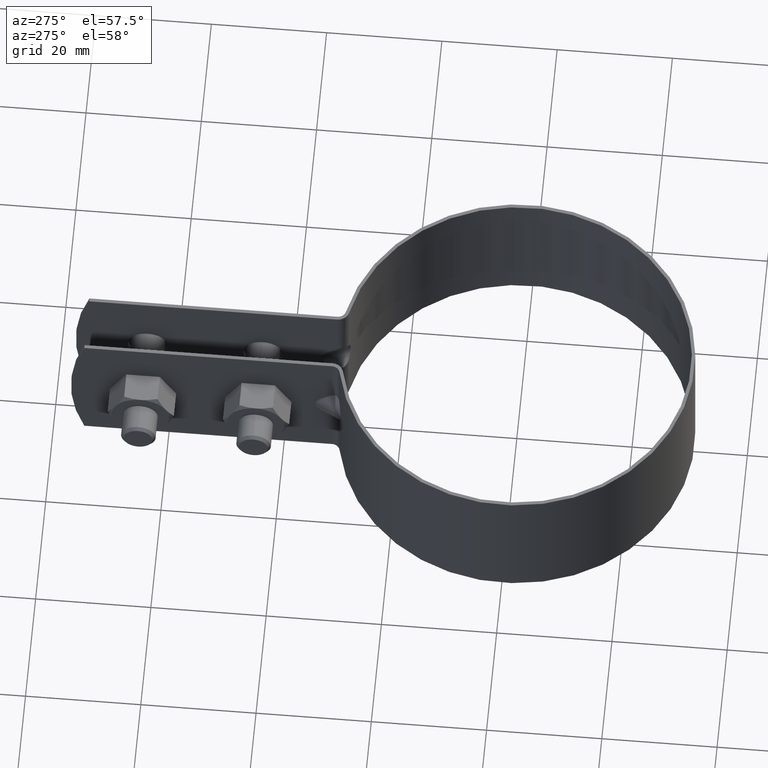
[diagram: clean part render]
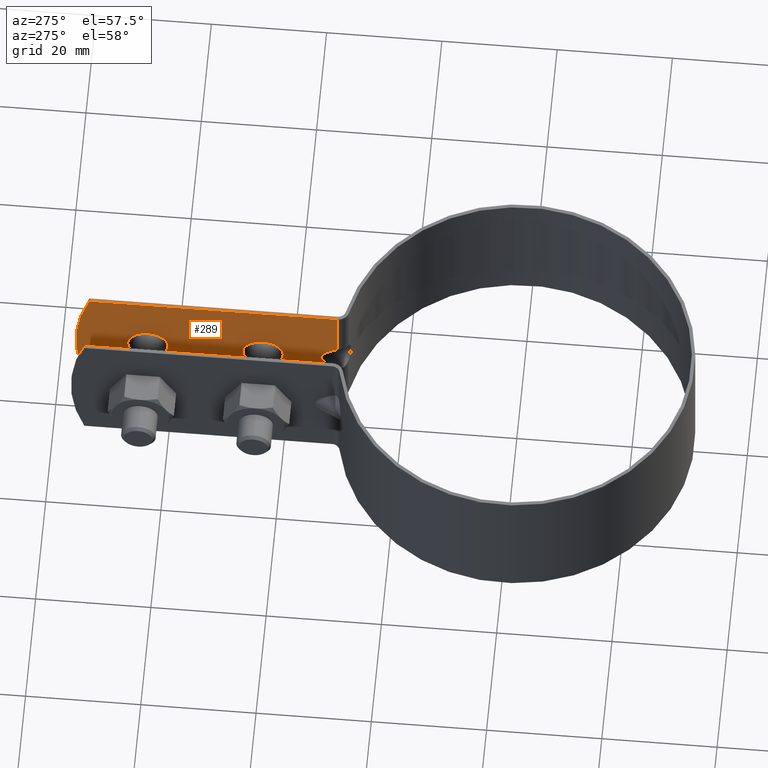
[diagram: same view with one face highlighted and labeled with its STEP entity id]
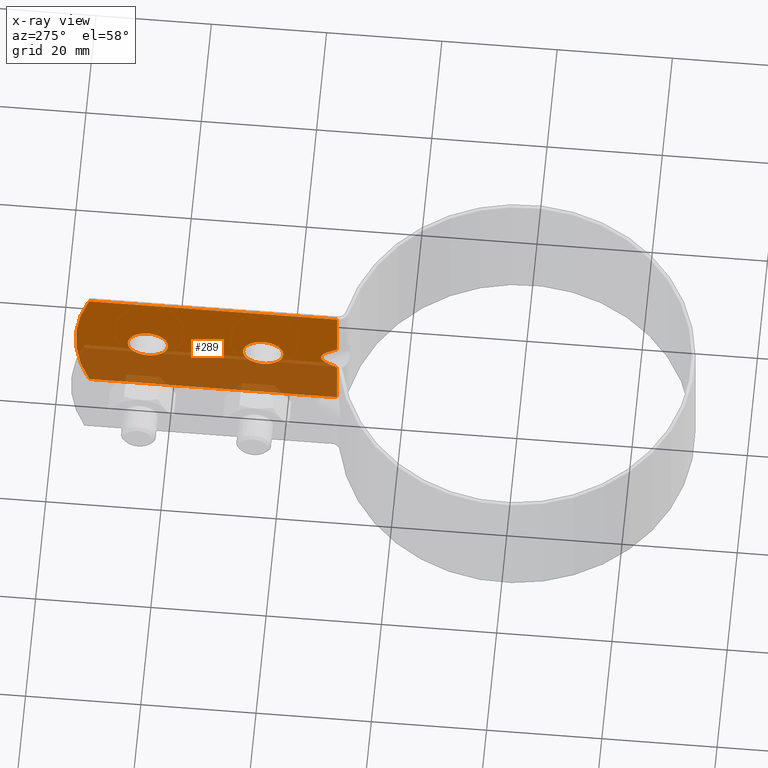
[diagram: x-ray of the same camera — body ghosted, the highlighted face saturated]
A machine part, auxiliary view. The second image highlights one B-rep face of the part: STEP entity #289.
The next image is the same camera in x-ray: the body ghosted, the highlighted face saturated — about 45% of this face is hidden behind the body in this view.
In plain terms, the highlighted planar face has unit normal (1, -0, 0).
Its self-contained STEP definition (entity closure, byte-faithful):
#289 = ADVANCED_FACE( '', ( #422, #423, #424 ), #425, .F. );
#422 = FACE_OUTER_BOUND( '', #654, .T. );
#423 = FACE_BOUND( '', #655, .T. );
#424 = FACE_BOUND( '', #656, .T. );
#425 = PLANE( '', #657 );
#654 = EDGE_LOOP( '', ( #1008, #1009, #1010, #1011, #1012, #1013, #1014, #1015 ) );
#655 = EDGE_LOOP( '', ( #1016 ) );
#656 = EDGE_LOOP( '', ( #1017 ) );
#657 = AXIS2_PLACEMENT_3D( '', #1018, #1019, #1020 );
#1008 = ORIENTED_EDGE( '', *, *, #1694, .T. );
#1009 = ORIENTED_EDGE( '', *, *, #1695, .T. );
#1010 = ORIENTED_EDGE( '', *, *, #1686, .F. );
#1011 = ORIENTED_EDGE( '', *, *, #1630, .F. );
#1012 = ORIENTED_EDGE( '', *, *, #1617, .T. );
#1013 = ORIENTED_EDGE( '', *, *, #1660, .F. );
#1014 = ORIENTED_EDGE( '', *, *, #1662, .F. );
#1015 = ORIENTED_EDGE( '', *, *, #1657, .F. );
#1016 = ORIENTED_EDGE( '', *, *, #1676, .F. );
#1017 = ORIENTED_EDGE( '', *, *, #1680, .F. );
#1018 = CARTESIAN_POINT( '', ( 4.50000000000000, 31.5881702540682, -12.5000000000000 ) );
#1019 = DIRECTION( '', ( 1.00000000000000, -6.06692130572647E-017, 0.000000000000000 ) );
#1020 = DIRECTION( '', ( 6.06692130572647E-017, 1.00000000000000, 0.000000000000000 ) );
#1617 = EDGE_CURVE( '', #1857, #1854, #1858, .T. );
#1630 = EDGE_CURVE( '', #1857, #1863, #1882, .T. );
#1657 = EDGE_CURVE( '', #1928, #1924, #1930, .T. );
#1660 = EDGE_CURVE( '', #1933, #1854, #1935, .T. );
#1662 = EDGE_CURVE( '', #1924, #1933, #1937, .F. );
#1676 = EDGE_CURVE( '', #1962, #1962, #1963, .F. );
#1680 = EDGE_CURVE( '', #1970, #1970, #1971, .F. );
#1686 = EDGE_CURVE( '', #1863, #1977, #1981, .T. );
#1694 = EDGE_CURVE( '', #1928, #1992, #1993, .T. );
#1695 = EDGE_CURVE( '', #1992, #1977, #1994, .T. );
#1854 = VERTEX_POINT( '', #2254 );
#1857 = VERTEX_POINT( '', #2257 );
#1858 = LINE( '', #2258, #2259 );
#1863 = VERTEX_POINT( '', #2265 );
#1882 = LINE( '', #2289, #2290 );
#1924 = VERTEX_POINT( '', #2373 );
#1928 = VERTEX_POINT( '', #2378 );
#1930 = LINE( '', #2380, #2381 );
#1933 = VERTEX_POINT( '', #2384 );
#1935 = LINE( '', #2387, #2388 );
#1937 = ELLIPSE( '', #2403, 7.48914349958989, 3.40000000000000 );
#1962 = VERTEX_POINT( '', #2445 );
#1963 = CIRCLE( '', #2446, 3.50000000000000 );
#1970 = VERTEX_POINT( '', #2453 );
#1971 = CIRCLE( '', #2454, 3.50000000000000 );
#1977 = VERTEX_POINT( '', #2461 );
#1981 = CIRCLE( '', #2466, 35.0000000000000 );
#1992 = VERTEX_POINT( '', #2483 );
#1993 = LINE( '', #2484, #2485 );
#1994 = LINE( '', #2486, #2487 );
#2254 = CARTESIAN_POINT( '', ( 4.50000000000000, 31.5881702540682, -2.86659732203416 ) );
#2257 = CARTESIAN_POINT( '', ( 4.50000000000000, 31.5881702540682, -12.5000000000000 ) );
#2258 = CARTESIAN_POINT( '', ( 4.50000000000000, 31.5881702540682, -12.5000000000000 ) );
#2259 = VECTOR( '', #2949, 1000.00000000000 );
#2265 = CARTESIAN_POINT( '', ( 4.50000000000000, 74.6051587988220, -12.5000000000000 ) );
#2289 = CARTESIAN_POINT( '', ( 4.50000000000000, 31.5881702540682, -12.5000000000000 ) );
#2290 = VECTOR( '', #2974, 1000.00000000000 );
#2373 = CARTESIAN_POINT( '', ( 4.50000000000000, 33.0016280314046, 1.95015988359350 ) );
#2378 = CARTESIAN_POINT( '', ( 4.50000000000000, 31.5881702540682, 2.86659732203410 ) );
#2380 = CARTESIAN_POINT( '', ( 4.50000000000000, 26.5707644136758, 6.11971080707299 ) );
#2381 = VECTOR( '', #3023, 1000.00000000000 );
#2384 = CARTESIAN_POINT( '', ( 4.50000000000000, 33.0016280314046, -1.95015988359356 ) );
#2387 = CARTESIAN_POINT( '', ( 4.50000000000000, 23.7596068373168, -7.94236875246011 ) );
#2388 = VECTOR( '', #3028, 1000.00000000000 );
#2403 = AXIS2_PLACEMENT_3D( '', #3029, #3030, #3031 );
#2445 = CARTESIAN_POINT( '', ( 4.50000000000000, 47.9134167222669, -8.67361737988404E-016 ) );
#2446 = AXIS2_PLACEMENT_3D( '', #3060, #3061, #3062 );
#2453 = CARTESIAN_POINT( '', ( 4.50000000000000, 67.9134167222669, -8.67361737988404E-016 ) );
#2454 = AXIS2_PLACEMENT_3D( '', #3072, #3073, #3074 );
#2461 = CARTESIAN_POINT( '', ( 4.50000000000000, 74.6051587988220, 12.5000000000000 ) );
#2466 = AXIS2_PLACEMENT_3D( '', #3086, #3087, #3088 );
#2483 = CARTESIAN_POINT( '', ( 4.50000000000000, 31.5881702540682, 12.5000000000000 ) );
#2484 = CARTESIAN_POINT( '', ( 4.50000000000000, 31.5881702540682, -12.5000000000000 ) );
#2485 = VECTOR( '', #3098, 1000.00000000000 );
#2486 = CARTESIAN_POINT( '', ( 4.50000000000000, 31.5881702540682, 12.5000000000000 ) );
#2487 = VECTOR( '', #3099, 1000.00000000000 );
#2949 = DIRECTION( '', ( 0.000000000000000, 0.000000000000000, 1.00000000000000 ) );
#2974 = DIRECTION( '', ( 6.06692130572647E-017, 1.00000000000000, 0.000000000000000 ) );
#3023 = DIRECTION( '', ( -5.09056978337516E-017, 0.839069690679893, -0.544023946331730 ) );
#3028 = DIRECTION( '', ( 5.09056978337516E-017, -0.839069690679893, -0.544023946331730 ) );
#3029 = CARTESIAN_POINT( '', ( 4.50000000000000, 26.8668808237420, -3.04440769143353E-014 ) );
#3030 = DIRECTION( '', ( 1.00000000000000, 6.06692130572647E-017, 0.000000000000000 ) );
#3031 = DIRECTION( '', ( -6.06692130572647E-017, 1.00000000000000, 9.96825944130074E-016 ) );
#3060 = CARTESIAN_POINT( '', ( 4.50000000000000, 44.4134167222669, -8.67361737988404E-016 ) );
#3061 = DIRECTION( '', ( 1.00000000000000, -6.06692130572647E-017, 0.000000000000000 ) );
#3062 = DIRECTION( '', ( 6.06692130572647E-017, 1.00000000000000, 0.000000000000000 ) );
#3072 = CARTESIAN_POINT( '', ( 4.50000000000000, 64.4134167222669, -8.67361737988404E-016 ) );
#3073 = DIRECTION( '', ( 1.00000000000000, -6.06692130572647E-017, 0.000000000000000 ) );
#3074 = DIRECTION( '', ( 6.06692130572647E-017, 1.00000000000000, 0.000000000000000 ) );
#3086 = CARTESIAN_POINT( '', ( 4.50000000000000, 41.9134167222669, -2.79712070627659E-031 ) );
#3087 = DIRECTION( '', ( 1.00000000000000, -6.06692130572647E-017, 0.000000000000000 ) );
#3088 = DIRECTION( '', ( 6.06692130572647E-017, 1.00000000000000, 0.000000000000000 ) );
#3098 = DIRECTION( '', ( 0.000000000000000, 0.000000000000000, 1.00000000000000 ) );
#3099 = DIRECTION( '', ( 6.06692130572647E-017, 1.00000000000000, 0.000000000000000 ) );